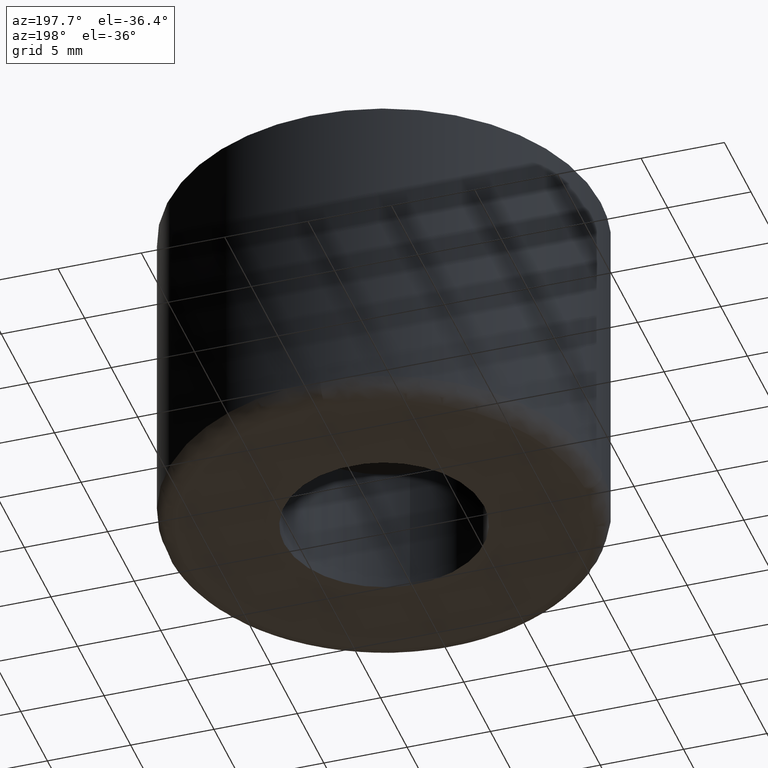
[diagram: clean part render]
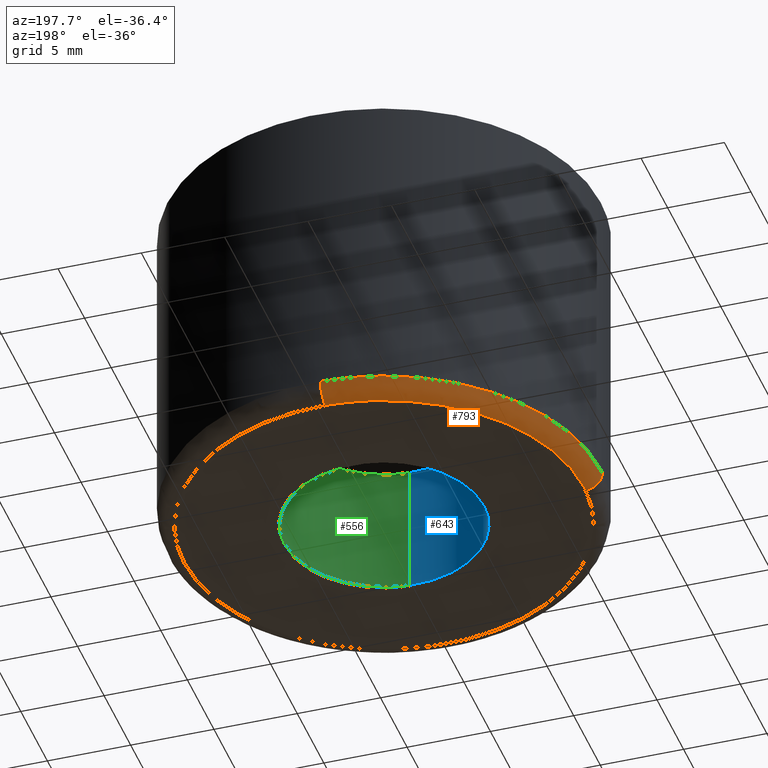
[diagram: same view with three faces highlighted in distinct colors, each labeled with its STEP entity id]
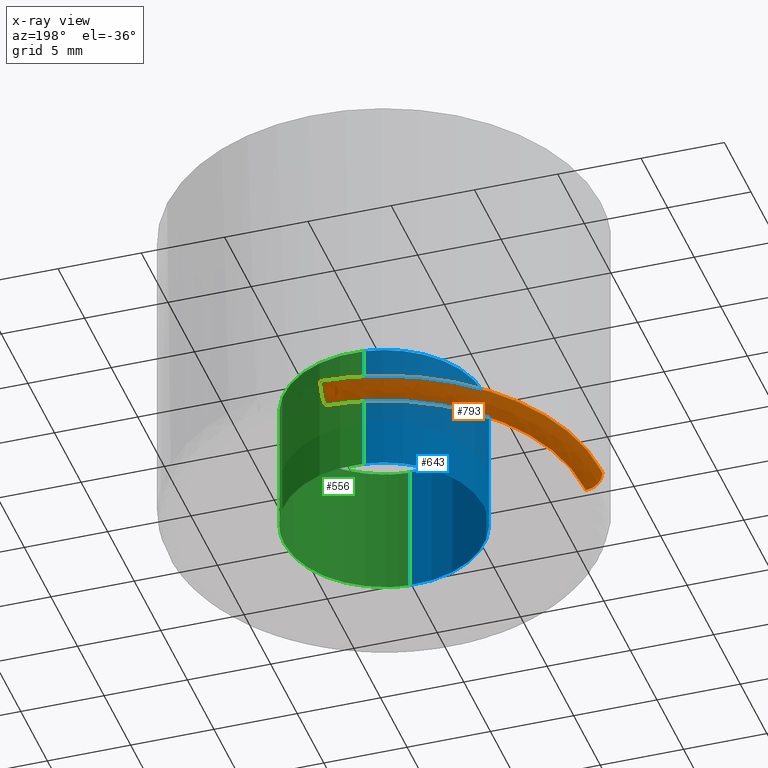
[diagram: x-ray of the same camera — body ghosted, the three highlighted faces saturated]
A machine part, auxiliary view with three faces highlighted in distinct colors.
The next image is the same camera in x-ray (body ghosted, the three faces saturated) — at least one of them is partly hidden behind the body in this view.
Their STEP definitions:

[orange] entity #793 — the highlighted face is a freeform B-spline surface patch.
#150=CARTESIAN_POINT('',(-0.326691240763947,12.995894460682880,0.999999999856145));
#151=VERTEX_POINT('',#150);
#167=CARTESIAN_POINT('',(-13.0,0.0,1.000000000000014));
#168=VERTEX_POINT('',#167);
#169=CARTESIAN_POINT('',(-13.0,0.0,1.000000000000014));
#170=CARTESIAN_POINT('',(-13.000000000000002,12.677312390347351,1.000000000000014));
#171=CARTESIAN_POINT('',(-0.326691240763947,12.995894460682887,0.999999999856145));
#179=(BOUNDED_CURVE()B_SPLINE_CURVE(2,(#169,#170,#171),.UNSPECIFIED.,.F.,.U.)B_SPLINE_CURVE_WITH_KNOTS((3,3),(0.0,0.245579891769793),.UNSPECIFIED.)CURVE()GEOMETRIC_REPRESENTATION_ITEM()RATIONAL_B_SPLINE_CURVE((1.0,0.712285260094745,0.989826157681542))REPRESENTATION_ITEM(''));
#180=EDGE_CURVE('',#168,#151,#179,.T.);
#182=CARTESIAN_POINT('',(-12.995894460682891,-0.326691240763720,0.999999999856132));
#183=VERTEX_POINT('',#182);
#184=CARTESIAN_POINT('',(-12.995894460682889,-0.326691240763720,0.999999999856132));
#185=CARTESIAN_POINT('',(-13.000000000000002,-0.163371417604268,1.000000000000014));
#186=CARTESIAN_POINT('',(-13.0,0.0,1.000000000000014));
#194=(BOUNDED_CURVE()B_SPLINE_CURVE(2,(#184,#185,#186),.UNSPECIFIED.,.F.,.U.)B_SPLINE_CURVE_WITH_KNOTS((3,3),(0.995579891769799,1.0),.UNSPECIFIED.)CURVE()GEOMETRIC_REPRESENTATION_ITEM()RATIONAL_B_SPLINE_CURVE((0.989826157681556,0.994821521091810,1.0))REPRESENTATION_ITEM(''));
#195=EDGE_CURVE('',#183,#168,#194,.T.);
#673=CARTESIAN_POINT('',(-0.301561146003583,11.996210305784739,1.557101E-014));
#674=VERTEX_POINT('',#673);
#692=CARTESIAN_POINT('',(-0.326691240763947,12.995894460682887,0.999999999856145));
#693=CARTESIAN_POINT('',(-0.326691240756156,12.995894460395249,0.000000068782938));
#694=CARTESIAN_POINT('',(-0.301561146003583,11.996210305784748,1.557101E-014));
#702=(BOUNDED_CURVE()B_SPLINE_CURVE(2,(#692,#693,#694),.UNSPECIFIED.,.F.,.U.)B_SPLINE_CURVE_WITH_KNOTS((3,3),(-1.723441281688515,-0.263586950115615),.UNSPECIFIED.)CURVE()GEOMETRIC_REPRESENTATION_ITEM()RATIONAL_B_SPLINE_CURVE((0.883897567034251,0.626638739835554,0.888510383522929))REPRESENTATION_ITEM(''));
#703=EDGE_CURVE('',#151,#674,#702,.T.);
#709=CARTESIAN_POINT('',(-11.996209041027869,-0.301561114222903,1.529176E-012));
#710=VERTEX_POINT('',#709);
#711=CARTESIAN_POINT('',(-12.995894460682893,-0.326691240763720,0.999999999856132));
#712=CARTESIAN_POINT('',(-12.995894460395222,-0.326691240756155,-0.000001230765381));
#713=CARTESIAN_POINT('',(-11.996209041027864,-0.301561114222903,1.529176E-012));
#721=(BOUNDED_CURVE()B_SPLINE_CURVE(2,(#711,#712,#713),.UNSPECIFIED.,.F.,.U.)B_SPLINE_CURVE_WITH_KNOTS((3,3),(-1.723441281688490,-0.263585605131602),.UNSPECIFIED.)CURVE()GEOMETRIC_REPRESENTATION_ITEM()RATIONAL_B_SPLINE_CURVE((0.883897567034243,0.626638502819439,0.888510866055314))REPRESENTATION_ITEM(''));
#722=EDGE_CURVE('',#183,#710,#721,.T.);
#742=CARTESIAN_POINT('',(-12.993461531505980,-0.326630081706278,1.069724261521371));
#743=CARTESIAN_POINT('',(-13.320091613212256,12.666831449799698,1.069724261521371));
#744=CARTESIAN_POINT('',(-0.326630081706279,12.993461531505980,1.069724261521371));
#745=CARTESIAN_POINT('',(-13.073609367339698,-0.328644840752855,-0.077337556004689));
#746=CARTESIAN_POINT('',(-13.402254208092550,12.744964526586841,-0.077337556004689));
#747=CARTESIAN_POINT('',(-0.328644840752855,13.073609367339698,-0.077337556004689));
#748=CARTESIAN_POINT('',(-11.926879990354873,-0.299818318336843,0.002407761315106));
#749=CARTESIAN_POINT('',(-12.226698308691715,11.627061672018030,0.002407761315106));
#750=CARTESIAN_POINT('',(-0.299818318336844,11.926879990354873,0.002407761315106));
#758=(BOUNDED_SURFACE()B_SPLINE_SURFACE(2,2,((#742,#745,#748),(#743,#746,#749),(#744,#747,#750)),.UNSPECIFIED.,.F.,.F.,.U.)B_SPLINE_SURFACE_WITH_KNOTS((3,3),(3,3),(0.0,21.535072960917422),(0.0,1.822372365114922),.UNSPECIFIED.)GEOMETRIC_REPRESENTATION_ITEM()RATIONAL_B_SPLINE_SURFACE(((0.910892973151577,0.599412584116369,0.915967299897522),(0.644098598250656,0.423848702957236,0.647686689102670),(0.910892973151577,0.599412584116369,0.915967299897522)))REPRESENTATION_ITEM('')SURFACE());
#759=CARTESIAN_POINT('',(-12.0,0.0,1.421085E-014));
#760=VERTEX_POINT('',#759);
#761=CARTESIAN_POINT('',(-12.0,0.0,1.421085E-014));
#762=CARTESIAN_POINT('',(-12.0,11.702134514520491,1.421085E-014));
#763=CARTESIAN_POINT('',(-0.301561146003583,11.996210305784739,1.557101E-014));
#771=(BOUNDED_CURVE()B_SPLINE_CURVE(2,(#761,#762,#763),.UNSPECIFIED.,.F.,.U.)B_SPLINE_CURVE_WITH_KNOTS((3,3),(0.0,0.245579891775080),.UNSPECIFIED.)CURVE()GEOMETRIC_REPRESENTATION_ITEM()RATIONAL_B_SPLINE_CURVE((1.0,0.712285260088550,0.989826157693493))REPRESENTATION_ITEM(''));
#772=EDGE_CURVE('',#760,#674,#771,.T.);
#773=ORIENTED_EDGE('',*,*,#772,.F.);
#774=CARTESIAN_POINT('',(-11.996209041027866,-0.301561114222903,1.529176E-012));
#775=CARTESIAN_POINT('',(-11.999999384812023,-0.150804369931942,7.716932E-013));
#776=CARTESIAN_POINT('',(-12.0,0.0,1.421085E-014));
#784=(BOUNDED_CURVE()B_SPLINE_CURVE(2,(#774,#775,#776),.UNSPECIFIED.,.F.,.U.)B_SPLINE_CURVE_WITH_KNOTS((3,3),(0.995579891772257,1.0),.UNSPECIFIED.)CURVE()GEOMETRIC_REPRESENTATION_ITEM()RATIONAL_B_SPLINE_CURVE((0.989826157687112,0.994821521094690,1.0))REPRESENTATION_ITEM(''));
#785=EDGE_CURVE('',#710,#760,#784,.T.);
#786=ORIENTED_EDGE('',*,*,#785,.F.);
#787=ORIENTED_EDGE('',*,*,#722,.F.);
#788=ORIENTED_EDGE('',*,*,#195,.T.);
#789=ORIENTED_EDGE('',*,*,#180,.T.);
#790=ORIENTED_EDGE('',*,*,#703,.T.);
#791=EDGE_LOOP('',(#773,#786,#787,#788,#789,#790));
#792=FACE_OUTER_BOUND('',#791,.T.);
#793=ADVANCED_FACE('',(#792),#758,.T.);

[blue] entity #643 — the highlighted face is a freeform B-spline surface patch.
#476=CARTESIAN_POINT('',(-0.708196321017467,5.958058238286496,-4.117171E-016));
#477=VERTEX_POINT('',#476);
#495=CARTESIAN_POINT('',(0.366281832401029,-5.988809365739083,-1.629252E-014));
#496=VERTEX_POINT('',#495);
#510=CARTESIAN_POINT('',(0.366281948464238,-5.988809358640717,8.0));
#511=VERTEX_POINT('',#510);
#512=CARTESIAN_POINT('',(0.366281948464238,-5.988809358640717,8.0));
#513=CARTESIAN_POINT('',(0.366281832401029,-5.988809365739083,-1.629252E-014));
#514=QUASI_UNIFORM_CURVE('',1,(#512,#513),.UNSPECIFIED.,.F.,.U.);
#515=EDGE_CURVE('',#511,#496,#514,.T.);
#532=CARTESIAN_POINT('',(-0.708196433134403,5.958058224960043,8.0));
#533=VERTEX_POINT('',#532);
#549=CARTESIAN_POINT('',(-0.708196433134403,5.958058224960043,8.0));
#550=CARTESIAN_POINT('',(-0.708196321017467,5.958058238286496,-4.117171E-016));
#551=QUASI_UNIFORM_CURVE('',1,(#549,#550),.UNSPECIFIED.,.F.,.U.);
#552=EDGE_CURVE('',#533,#477,#551,.T.);
#557=CARTESIAN_POINT('',(0.448808943083969,-5.983761791431090,8.199999999999999));
#558=CARTESIAN_POINT('',(0.407668165502612,-5.986278069182990,8.199999999999996));
#559=CARTESIAN_POINT('',(-5.622517553322059,-6.355100027740342,8.199999999999999));
#560=CARTESIAN_POINT('',(-5.988808790531200,-0.366291237209142,8.199999999999999));
#561=CARTESIAN_POINT('',(-6.334717180395164,5.289260945037006,8.199999999999999));
#562=CARTESIAN_POINT('',(-0.666077362746289,5.963064714947642,8.200000000000001));
#563=CARTESIAN_POINT('',(-0.624175735814538,5.968045358470643,8.200000000000001));
#564=CARTESIAN_POINT('',(0.448808943083969,-5.983761791431090,-0.205000000000000));
#565=CARTESIAN_POINT('',(0.407668165502612,-5.986278069182990,-0.205000000000000));
#566=CARTESIAN_POINT('',(-5.622517553322059,-6.355100027740342,-0.205000000000000));
#567=CARTESIAN_POINT('',(-5.988808790531200,-0.366291237209142,-0.205000000000000));
#568=CARTESIAN_POINT('',(-6.334717180395164,5.289260945037006,-0.205000000000000));
#569=CARTESIAN_POINT('',(-0.666077362746289,5.963064714947642,-0.205000000000000));
#570=CARTESIAN_POINT('',(-0.624175735814538,5.968045358470643,-0.205000000000000));
#578=(BOUNDED_SURFACE()B_SPLINE_SURFACE(2,1,((#557,#564),(#558,#565),(#559,#566),(#560,#567),(#561,#568),(#562,#569),(#563,#570)),.UNSPECIFIED.,.F.,.F.,.U.)B_SPLINE_SURFACE_WITH_KNOTS((3,1,2,1,3),(2,2),(0.0,0.097412122804679,10.038537619758960,19.582018096835061,19.679451602189129),(0.0,8.405000000000003),.UNSPECIFIED.)GEOMETRIC_REPRESENTATION_ITEM()RATIONAL_B_SPLINE_SURFACE(((1.005740064383747,1.005740064383747),(1.002870032191874,1.002870032191874),(0.707106781186548,0.707106781186548),(1.0,1.0),(0.718822509939086,0.718822509939086),(0.980146810001901,0.980146810001901),(0.982787819208675,0.982787819208675)))REPRESENTATION_ITEM('')SURFACE());
#579=CARTESIAN_POINT('',(-6.0,0.0,0.0));
#580=VERTEX_POINT('',#579);
#581=CARTESIAN_POINT('',(-6.0,0.0,0.0));
#582=CARTESIAN_POINT('',(-5.999999999999999,5.329055340517229,0.0));
#583=CARTESIAN_POINT('',(-0.708196321017467,5.958058238286496,-4.117171E-016));
#591=(BOUNDED_CURVE()B_SPLINE_CURVE(2,(#581,#582,#583),.UNSPECIFIED.,.F.,.U.)B_SPLINE_CURVE_WITH_KNOTS((3,3),(0.0,0.229562731270752),.UNSPECIFIED.)CURVE()GEOMETRIC_REPRESENTATION_ITEM()RATIONAL_B_SPLINE_CURVE((1.0,0.731050530874008,0.956027259399068))REPRESENTATION_ITEM(''));
#592=EDGE_CURVE('',#580,#477,#591,.T.);
#593=ORIENTED_EDGE('',*,*,#592,.T.);
#594=ORIENTED_EDGE('',*,*,#552,.F.);
#595=CARTESIAN_POINT('',(-6.0,0.0,8.0));
#596=VERTEX_POINT('',#595);
#597=CARTESIAN_POINT('',(-6.0,0.0,8.0));
#598=CARTESIAN_POINT('',(-6.000000000000001,5.329055239530774,8.0));
#599=CARTESIAN_POINT('',(-0.708196433134403,5.958058224960043,8.0));
#607=(BOUNDED_CURVE()B_SPLINE_CURVE(2,(#597,#598,#599),.UNSPECIFIED.,.F.,.U.)B_SPLINE_CURVE_WITH_KNOTS((3,3),(0.0,0.229562728090499),.UNSPECIFIED.)CURVE()GEOMETRIC_REPRESENTATION_ITEM()RATIONAL_B_SPLINE_CURVE((1.0,0.731050534599906,0.956027253165626))REPRESENTATION_ITEM(''));
#608=EDGE_CURVE('',#596,#533,#607,.T.);
#609=ORIENTED_EDGE('',*,*,#608,.F.);
#610=CARTESIAN_POINT('',(0.366281948464238,-5.988809358640717,8.0));
#611=CARTESIAN_POINT('',(0.183311922397264,-6.0,8.0));
#612=CARTESIAN_POINT('',(0.0,-6.0,8.0));
#613=CARTESIAN_POINT('',(-6.0,-6.0,8.0));
#614=CARTESIAN_POINT('',(-6.0,0.0,8.0));
#622=(BOUNDED_CURVE()B_SPLINE_CURVE(2,(#610,#611,#612,#613,#614),.UNSPECIFIED.,.F.,.U.)B_SPLINE_CURVE_WITH_KNOTS((3,2,3),(0.739333229865045,0.750000000000000,1.0),.UNSPECIFIED.)CURVE()GEOMETRIC_REPRESENTATION_ITEM()RATIONAL_B_SPLINE_CURVE((0.976072615241070,0.987503101443319,1.0,0.707106781186548,1.0))REPRESENTATION_ITEM(''));
#623=EDGE_CURVE('',#511,#596,#622,.T.);
#624=ORIENTED_EDGE('',*,*,#623,.F.);
#625=ORIENTED_EDGE('',*,*,#515,.T.);
#626=CARTESIAN_POINT('',(0.366281832401029,-5.988809365739083,-1.629252E-014));
#627=CARTESIAN_POINT('',(0.183311864202960,-6.0,0.0));
#628=CARTESIAN_POINT('',(0.0,-6.0,0.0));
#629=CARTESIAN_POINT('',(-6.0,-6.0,0.0));
#630=CARTESIAN_POINT('',(-6.0,0.0,0.0));
#638=(BOUNDED_CURVE()B_SPLINE_CURVE(2,(#626,#627,#628,#629,#630),.UNSPECIFIED.,.F.,.U.)B_SPLINE_CURVE_WITH_KNOTS((3,2,3),(0.739333233209006,0.750000000000000,1.0),.UNSPECIFIED.)CURVE()GEOMETRIC_REPRESENTATION_ITEM()RATIONAL_B_SPLINE_CURVE((0.976072622407832,0.987503105361013,1.0,0.707106781186548,1.0))REPRESENTATION_ITEM(''));
#639=EDGE_CURVE('',#496,#580,#638,.T.);
#640=ORIENTED_EDGE('',*,*,#639,.T.);
#641=EDGE_LOOP('',(#593,#594,#609,#624,#625,#640));
#642=FACE_OUTER_BOUND('',#641,.T.);
#643=ADVANCED_FACE('',(#642),#578,.F.);

[green] entity #556 — the highlighted face is a freeform B-spline surface patch.
#450=CARTESIAN_POINT('',(-0.796616156477390,5.947548200551763,8.200000000000001));
#451=CARTESIAN_POINT('',(-0.752286149670043,5.952817493833363,8.200000000000001));
#452=CARTESIAN_POINT('',(-0.537688371827866,5.978325692691634,8.199999999999999));
#453=CARTESIAN_POINT('',(-0.366291237209142,5.988808790531200,8.199999999999999));
#454=CARTESIAN_POINT('',(5.622517553322059,6.355100027740342,8.199999999999999));
#455=CARTESIAN_POINT('',(5.988808790531200,0.366291237209142,8.199999999999999));
#456=CARTESIAN_POINT('',(6.355100027740342,-5.622517553322059,8.199999999999999));
#457=CARTESIAN_POINT('',(0.323221002574818,-5.991443078931932,8.199999999999999));
#458=CARTESIAN_POINT('',(0.280406612700376,-5.994061719196798,8.199999999999999));
#459=CARTESIAN_POINT('',(-0.796616156477390,5.947548200551763,-0.205000000000000));
#460=CARTESIAN_POINT('',(-0.752286149670043,5.952817493833363,-0.205000000000000));
#461=CARTESIAN_POINT('',(-0.537688371827866,5.978325692691634,-0.205000000000000));
#462=CARTESIAN_POINT('',(-0.366291237209142,5.988808790531200,-0.205000000000000));
#463=CARTESIAN_POINT('',(5.622517553322059,6.355100027740342,-0.205000000000000));
#464=CARTESIAN_POINT('',(5.988808790531200,0.366291237209142,-0.205000000000000));
#465=CARTESIAN_POINT('',(6.355100027740342,-5.622517553322059,-0.205000000000000));
#466=CARTESIAN_POINT('',(0.323221002574818,-5.991443078931932,-0.205000000000000));
#467=CARTESIAN_POINT('',(0.280406612700376,-5.994061719196798,-0.205000000000000));
#475=(BOUNDED_SURFACE()B_SPLINE_SURFACE(2,1,((#450,#459),(#451,#460),(#452,#461),(#453,#462),(#454,#463),(#455,#464),(#456,#465),(#457,#466),(#458,#467)),.UNSPECIFIED.,.F.,.F.,.U.)B_SPLINE_SURFACE_WITH_KNOTS((3,1,2,2,1,3),(2,2),(0.0,0.101389130768249,0.499034150646421,10.440159647600700,20.381285144554980,20.482695664807789),(0.0,8.405000000000001),.UNSPECIFIED.)GEOMETRIC_REPRESENTATION_ITEM()RATIONAL_B_SPLINE_SURFACE(((0.972009341915756,0.972009341915756),(0.974757571355441,0.974757571355441),(0.988284271247462,0.988284271247462),(1.0,1.0),(0.707106781186548,0.707106781186548),(1.0,1.0),(0.707106781186548,0.707106781186548),(1.002987836106434,1.002987836106434),(1.005975672212868,1.005975672212868)))REPRESENTATION_ITEM('')SURFACE());
#476=CARTESIAN_POINT('',(-0.708196321017467,5.958058238286496,-4.117171E-016));
#477=VERTEX_POINT('',#476);
#478=CARTESIAN_POINT('',(6.0,0.0,0.0));
#479=VERTEX_POINT('',#478);
#480=CARTESIAN_POINT('',(-0.708196321017467,5.958058238286496,-4.117171E-016));
#481=CARTESIAN_POINT('',(-0.355340126418063,6.0,0.0));
#482=CARTESIAN_POINT('',(0.0,6.0,0.0));
#483=CARTESIAN_POINT('',(6.0,6.0,0.0));
#484=CARTESIAN_POINT('',(6.0,0.0,0.0));
#492=(BOUNDED_CURVE()B_SPLINE_CURVE(2,(#480,#481,#482,#483,#484),.UNSPECIFIED.,.F.,.U.)B_SPLINE_CURVE_WITH_KNOTS((3,2,3),(0.229562731270752,0.250000000000000,0.500000000000000),.UNSPECIFIED.)CURVE()GEOMETRIC_REPRESENTATION_ITEM()RATIONAL_B_SPLINE_CURVE((0.956027259399068,0.976056250312540,1.0,0.707106781186548,1.0))REPRESENTATION_ITEM(''));
#493=EDGE_CURVE('',#477,#479,#492,.T.);
#494=ORIENTED_EDGE('',*,*,#493,.T.);
#495=CARTESIAN_POINT('',(0.366281832401029,-5.988809365739083,-1.629252E-014));
#496=VERTEX_POINT('',#495);
#497=CARTESIAN_POINT('',(6.0,0.0,0.0));
#498=CARTESIAN_POINT('',(6.0,-5.644245281695966,0.0));
#499=CARTESIAN_POINT('',(0.366281832401029,-5.988809365739083,-1.629252E-014));
#507=(BOUNDED_CURVE()B_SPLINE_CURVE(2,(#497,#498,#499),.UNSPECIFIED.,.F.,.U.)B_SPLINE_CURVE_WITH_KNOTS((3,3),(0.500000000000000,0.739333233209006),.UNSPECIFIED.)CURVE()GEOMETRIC_REPRESENTATION_ITEM()RATIONAL_B_SPLINE_CURVE((1.0,0.719603675825535,0.976072622407832))REPRESENTATION_ITEM(''));
#508=EDGE_CURVE('',#479,#496,#507,.T.);
#509=ORIENTED_EDGE('',*,*,#508,.T.);
#510=CARTESIAN_POINT('',(0.366281948464238,-5.988809358640717,8.0));
#511=VERTEX_POINT('',#510);
#512=CARTESIAN_POINT('',(0.366281948464238,-5.988809358640717,8.0));
#513=CARTESIAN_POINT('',(0.366281832401029,-5.988809365739083,-1.629252E-014));
#514=QUASI_UNIFORM_CURVE('',1,(#512,#513),.UNSPECIFIED.,.F.,.U.);
#515=EDGE_CURVE('',#511,#496,#514,.T.);
#516=ORIENTED_EDGE('',*,*,#515,.F.);
#517=CARTESIAN_POINT('',(6.0,0.0,8.0));
#518=VERTEX_POINT('',#517);
#519=CARTESIAN_POINT('',(6.0,0.0,8.0));
#520=CARTESIAN_POINT('',(6.0,-5.644245172106031,8.0));
#521=CARTESIAN_POINT('',(0.366281948464238,-5.988809358640717,8.0));
#529=(BOUNDED_CURVE()B_SPLINE_CURVE(2,(#519,#520,#521),.UNSPECIFIED.,.F.,.U.)B_SPLINE_CURVE_WITH_KNOTS((3,3),(0.500000000000000,0.739333229865045),.UNSPECIFIED.)CURVE()GEOMETRIC_REPRESENTATION_ITEM()RATIONAL_B_SPLINE_CURVE((1.0,0.719603679743228,0.976072615241070))REPRESENTATION_ITEM(''));
#530=EDGE_CURVE('',#518,#511,#529,.T.);
#531=ORIENTED_EDGE('',*,*,#530,.F.);
#532=CARTESIAN_POINT('',(-0.708196433134403,5.958058224960043,8.0));
#533=VERTEX_POINT('',#532);
#534=CARTESIAN_POINT('',(-0.708196433134403,5.958058224960043,8.0));
#535=CARTESIAN_POINT('',(-0.355340183069149,6.0,8.0));
#536=CARTESIAN_POINT('',(0.0,6.0,8.0));
#537=CARTESIAN_POINT('',(6.0,6.0,8.0));
#538=CARTESIAN_POINT('',(6.0,0.0,8.0));
#546=(BOUNDED_CURVE()B_SPLINE_CURVE(2,(#534,#535,#536,#537,#538),.UNSPECIFIED.,.F.,.U.)B_SPLINE_CURVE_WITH_KNOTS((3,2,3),(0.229562728090499,0.250000000000000,0.500000000000000),.UNSPECIFIED.)CURVE()GEOMETRIC_REPRESENTATION_ITEM()RATIONAL_B_SPLINE_CURVE((0.956027253165626,0.976056246586641,1.0,0.707106781186548,1.0))REPRESENTATION_ITEM(''));
#547=EDGE_CURVE('',#533,#518,#546,.T.);
#548=ORIENTED_EDGE('',*,*,#547,.F.);
#549=CARTESIAN_POINT('',(-0.708196433134403,5.958058224960043,8.0));
#550=CARTESIAN_POINT('',(-0.708196321017467,5.958058238286496,-4.117171E-016));
#551=QUASI_UNIFORM_CURVE('',1,(#549,#550),.UNSPECIFIED.,.F.,.U.);
#552=EDGE_CURVE('',#533,#477,#551,.T.);
#553=ORIENTED_EDGE('',*,*,#552,.T.);
#554=EDGE_LOOP('',(#494,#509,#516,#531,#548,#553));
#555=FACE_OUTER_BOUND('',#554,.T.);
#556=ADVANCED_FACE('',(#555),#475,.F.);